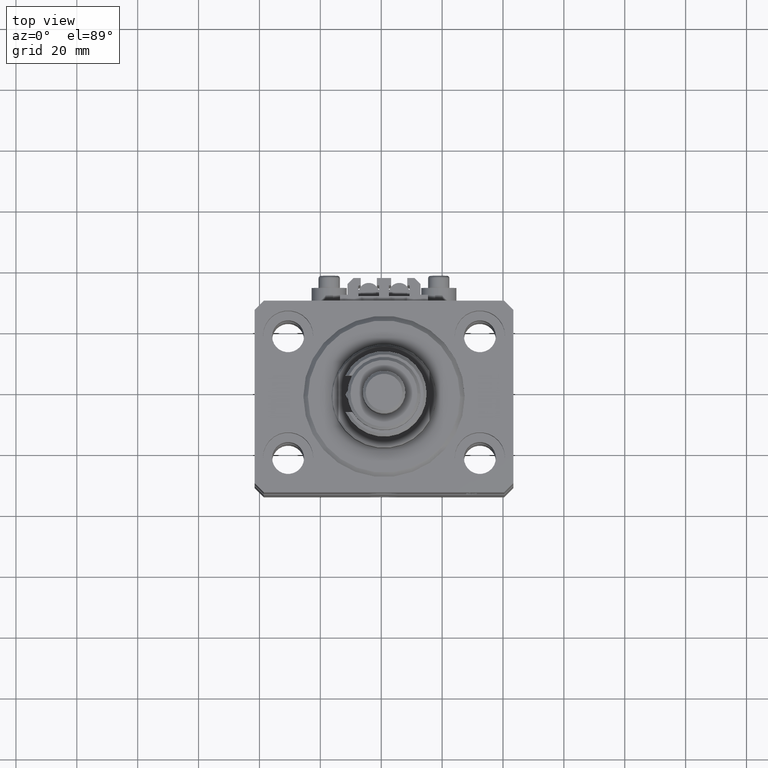
[diagram: clean part render]
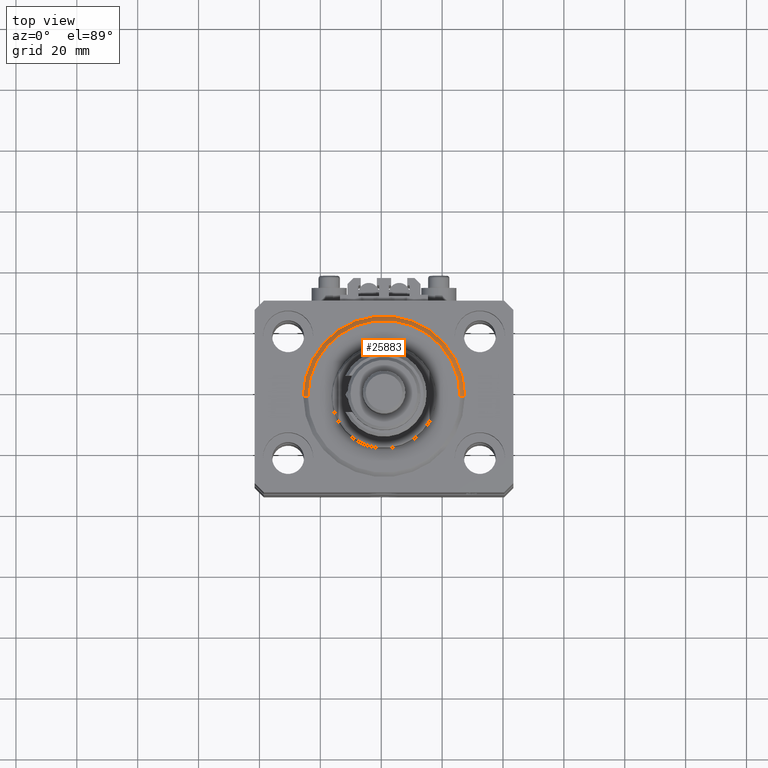
[diagram: same view with one face highlighted and labeled with its STEP entity id]
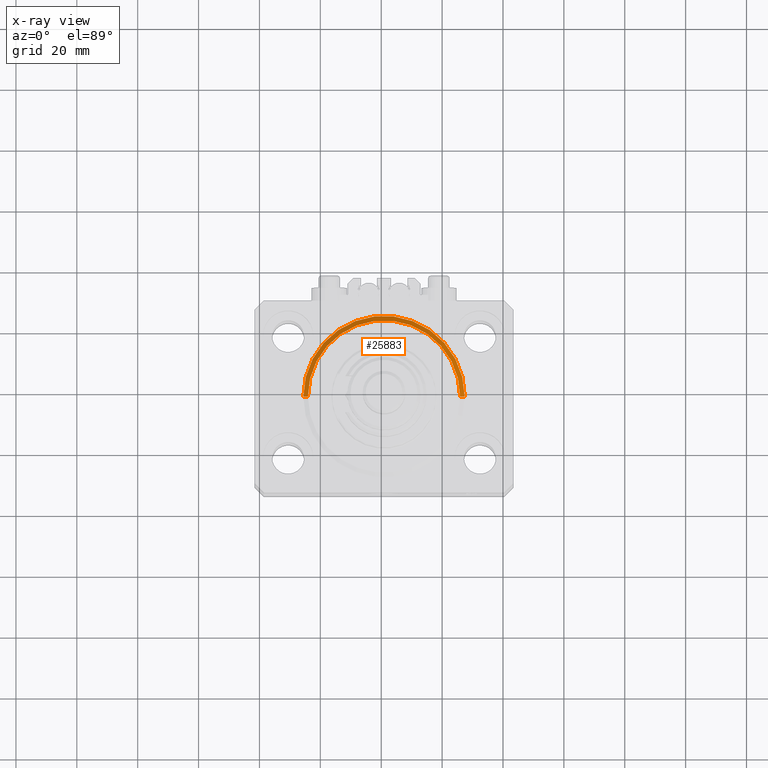
[diagram: x-ray of the same camera — body ghosted, the highlighted face saturated]
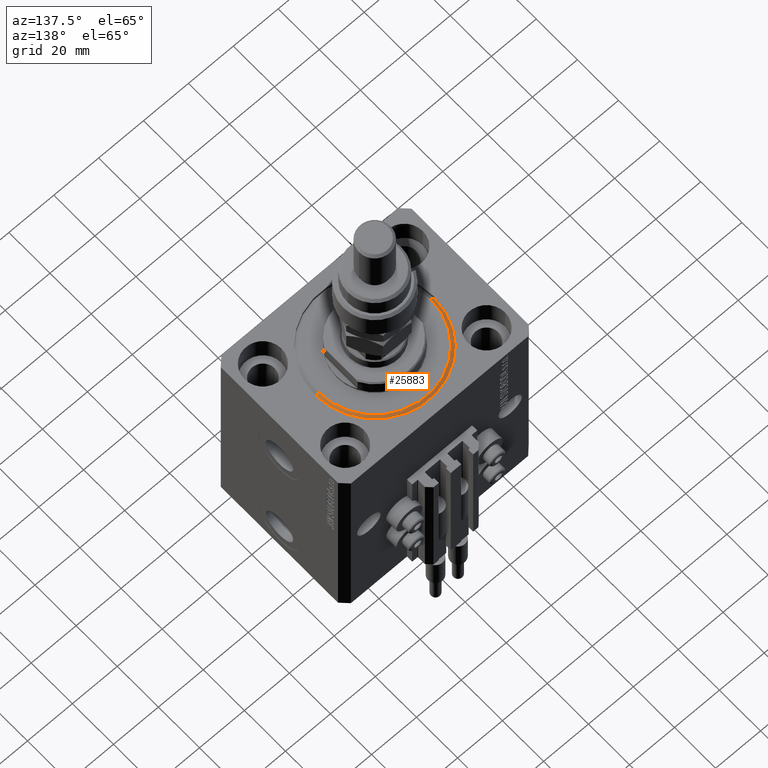
[diagram: same view with one face highlighted and labeled with its STEP entity id]
A machine part, top view. The second image highlights one B-rep face of the part: STEP entity #25883.
The next image is the same camera in x-ray: the body ghosted, the highlighted face saturated — about 0% of this face is hidden behind the body in this view.
A second angle (auxiliary view) of the same face is appended — the face is thin or edge-on in the first view.
In plain terms, the highlighted conical surface has half-angle 45 deg.
Its self-contained STEP definition (entity closure, byte-faithful):
#616 = FACE_OUTER_BOUND ( 'NONE', #10752, .T. ) ;
#2306 = EDGE_CURVE ( 'NONE', #46439, #14691, #7975, .T. ) ;
#6790 = AXIS2_PLACEMENT_3D ( 'NONE', #11631, #22801, #11373 ) ;
#7772 = EDGE_CURVE ( 'NONE', #14691, #13822, #24171, .T. ) ;
#7975 = LINE ( 'NONE', #44260, #50458 ) ;
#8890 = CARTESIAN_POINT ( 'NONE',  ( 0.000000000000000000, 0.000000000000000000, 1.500000000000046407 ) ) ;
#9576 = DIRECTION ( 'NONE',  ( -0.7071067811865491270, 8.659560562354952580E-17, 0.7071067811865459074 ) ) ;
#9835 = LINE ( 'NONE', #45112, #27061 ) ;
#10752 = EDGE_LOOP ( 'NONE', ( #26565, #43694, #19087, #25309 ) ) ;
#11373 = DIRECTION ( 'NONE',  ( 1.000000000000000000, 0.000000000000000000, 0.000000000000000000 ) ) ;
#11631 = CARTESIAN_POINT ( 'NONE',  ( 0.000000000000000000, 0.000000000000000000, 1.500000000000046407 ) ) ;
#13029 = DIRECTION ( 'NONE',  ( 1.000000000000000000, 0.000000000000000000, 0.000000000000000000 ) ) ;
#13822 = VERTEX_POINT ( 'NONE', #47320 ) ;
#14691 = VERTEX_POINT ( 'NONE', #18039 ) ;
#16401 = DIRECTION ( 'NONE',  ( -0.000000000000000000, -0.000000000000000000, 1.000000000000000000 ) ) ;
#18039 = CARTESIAN_POINT ( 'NONE',  ( 26.50000000000000355, 3.245314017740485765E-15, 1.500000000000046407 ) ) ;
#18262 = CARTESIAN_POINT ( 'NONE',  ( -24.99999999999995026, 3.153465507804431248E-15, 0.000000000000000000 ) ) ;
#19087 = ORIENTED_EDGE ( 'NONE', *, *, #7772, .F. ) ;
#19884 = DIRECTION ( 'NONE',  ( 0.7071067811865491270, 0.000000000000000000, 0.7071067811865459074 ) ) ;
#22801 = DIRECTION ( 'NONE',  ( -0.000000000000000000, -0.000000000000000000, 1.000000000000000000 ) ) ;
#24171 = CIRCLE ( 'NONE', #6790, 26.50000000000000355 ) ;
#24671 = EDGE_CURVE ( 'NONE', #25574, #13822, #9835, .T. ) ;
#25309 = ORIENTED_EDGE ( 'NONE', *, *, #2306, .F. ) ;
#25574 = VERTEX_POINT ( 'NONE', #18262 ) ;
#25628 = CIRCLE ( 'NONE', #29788, 24.99999999999995026 ) ;
#25883 = ADVANCED_FACE ( 'NONE', ( #616 ), #31020, .T. ) ;
#26565 = ORIENTED_EDGE ( 'NONE', *, *, #40219, .F. ) ;
#27061 = VECTOR ( 'NONE', #9576, 1000.000000000000000 ) ;
#28314 = CARTESIAN_POINT ( 'NONE',  ( 24.99999999999995026, 0.000000000000000000, 0.000000000000000000 ) ) ;
#29788 = AXIS2_PLACEMENT_3D ( 'NONE', #34516, #42798, #38150 ) ;
#31020 = CONICAL_SURFACE ( 'NONE', #44243, 26.50000000000000355, 0.7853981633974506105 ) ;
#34516 = CARTESIAN_POINT ( 'NONE',  ( 0.000000000000000000, 0.000000000000000000, 0.000000000000000000 ) ) ;
#38150 = DIRECTION ( 'NONE',  ( 1.000000000000000000, 0.000000000000000000, 0.000000000000000000 ) ) ;
#40219 = EDGE_CURVE ( 'NONE', #25574, #46439, #25628, .T. ) ;
#42798 = DIRECTION ( 'NONE',  ( -0.000000000000000000, -0.000000000000000000, -1.000000000000000000 ) ) ;
#43694 = ORIENTED_EDGE ( 'NONE', *, *, #24671, .T. ) ;
#44243 = AXIS2_PLACEMENT_3D ( 'NONE', #8890, #16401, #13029 ) ;
#44260 = CARTESIAN_POINT ( 'NONE',  ( 26.50000000000000355, 0.000000000000000000, 1.500000000000046407 ) ) ;
#45112 = CARTESIAN_POINT ( 'NONE',  ( -26.50000000000000355, 3.245314017740486554E-15, 1.500000000000046407 ) ) ;
#46439 = VERTEX_POINT ( 'NONE', #28314 ) ;
#47320 = CARTESIAN_POINT ( 'NONE',  ( -26.50000000000000355, 0.000000000000000000, 1.500000000000046407 ) ) ;
#50458 = VECTOR ( 'NONE', #19884, 1000.000000000000000 ) ;